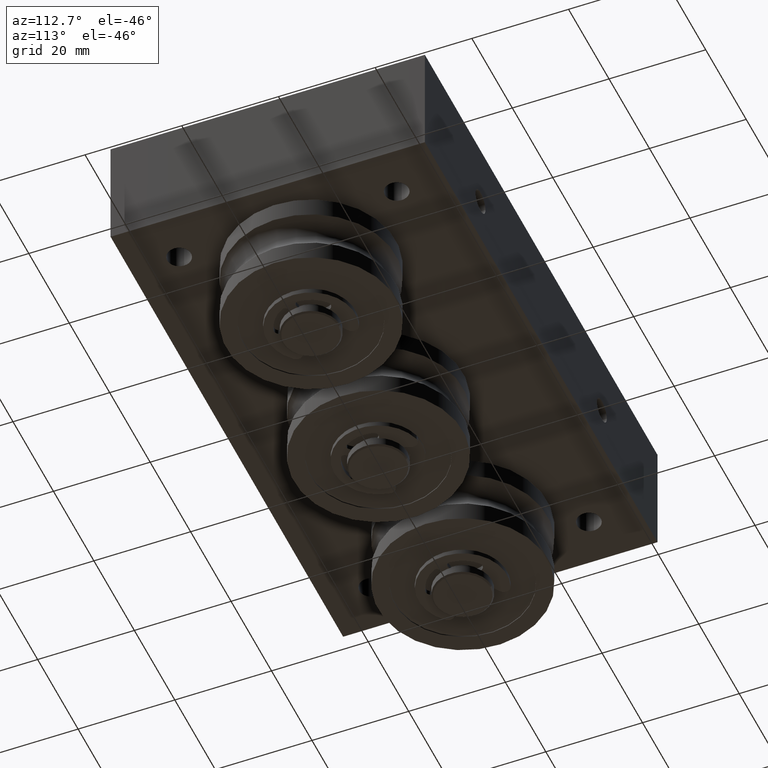
[diagram: clean part render]
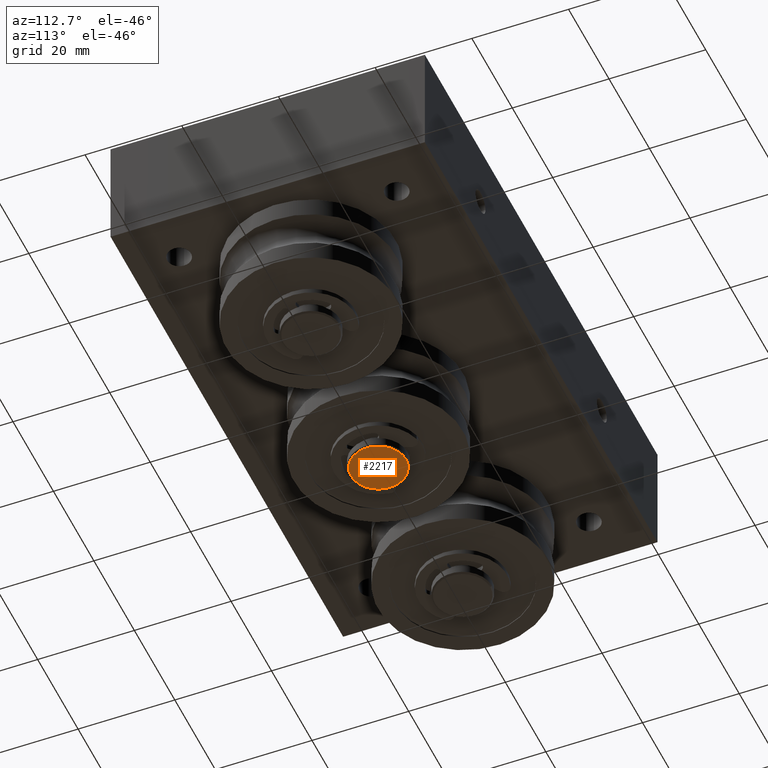
[diagram: same view with one face highlighted and labeled with its STEP entity id]
A machine part, auxiliary view. The second image highlights one B-rep face of the part: STEP entity #2217.
In plain terms, the highlighted planar face has unit normal (0, 0, -1).
Its self-contained STEP definition (entity closure, byte-faithful):
#214=PLANE('',#2618);
#356=FACE_OUTER_BOUND('',#523,.T.);
#523=EDGE_LOOP('',(#1753));
#957=CIRCLE('',#2613,5.7);
#1116=VERTEX_POINT('',#3782);
#1343=EDGE_CURVE('',#1116,#1116,#957,.T.);
#1753=ORIENTED_EDGE('',*,*,#1343,.F.);
#2217=ADVANCED_FACE('',(#356),#214,.T.);
#2613=AXIS2_PLACEMENT_3D('',#3783,#3072,#3073);
#2618=AXIS2_PLACEMENT_3D('',#3793,#3084,#3085);
#3072=DIRECTION('center_axis',(-1.,0.,0.));
#3073=DIRECTION('ref_axis',(0.,-1.,0.));
#3084=DIRECTION('center_axis',(1.,0.,0.));
#3085=DIRECTION('ref_axis',(0.,0.,-1.));
#3782=CARTESIAN_POINT('',(21.,5.7,-6.98048675513991E-16));
#3783=CARTESIAN_POINT('Origin',(21.,0.,0.));
#3793=CARTESIAN_POINT('Origin',(21.,3.,0.));